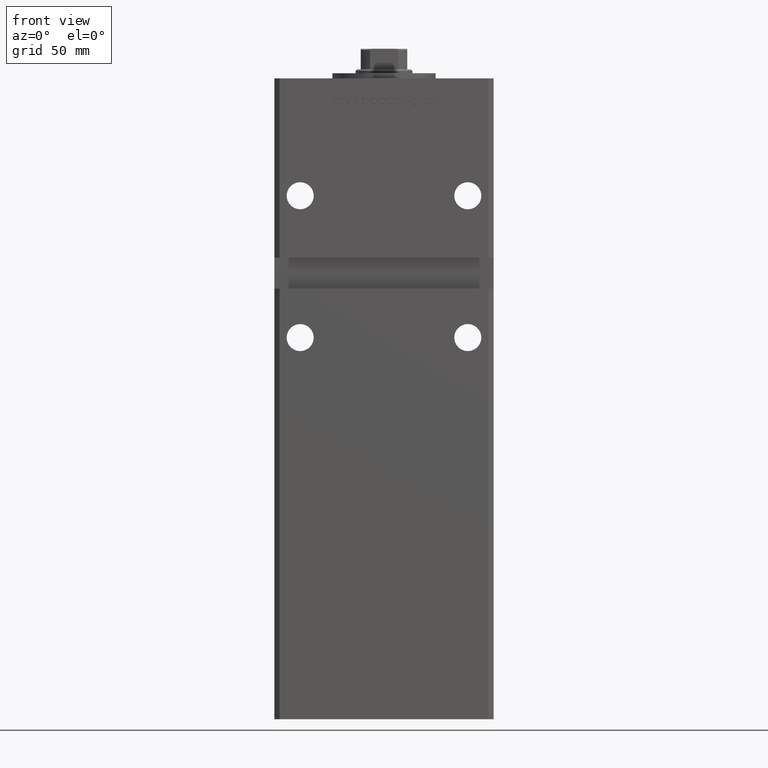
[diagram: clean part render]
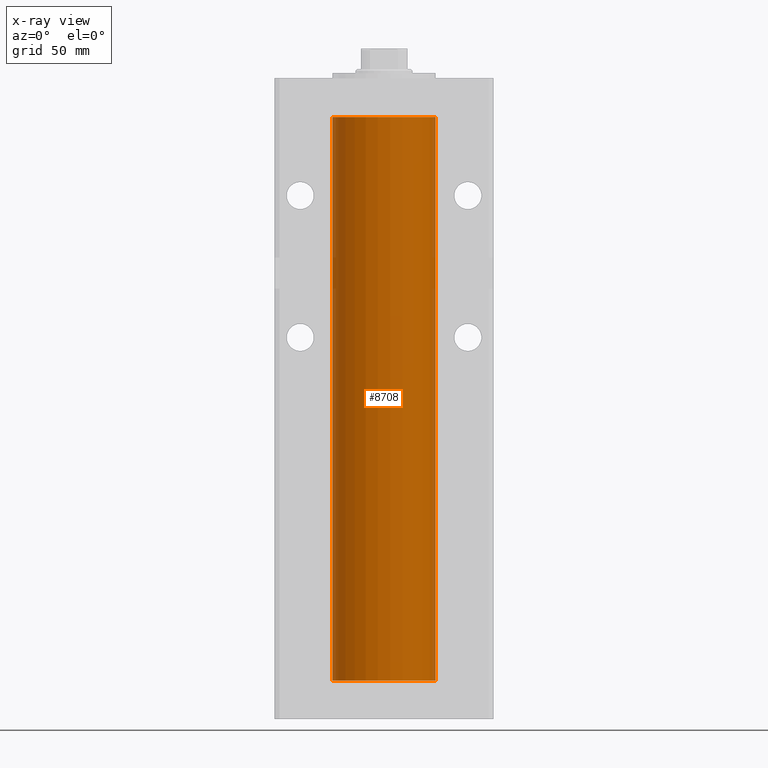
[diagram: x-ray — body ghosted, one internal face saturated and labeled with its STEP entity id]
A machine part, front view, then the same camera in x-ray: the body is ghosted and one INTERNAL B-rep face — a face not visible from any outside direction — is saturated and labeled: STEP entity #8708.
In plain terms, the highlighted cylindrical surface (partial cylindrical patch) has radius 20 mm, axis along (-0, -0, -1).
Its self-contained STEP definition (entity closure, byte-faithful):
#2366 = CARTESIAN_POINT ( 'NONE',  ( -20.00000000000000000, 0.000000000000000000, 0.000000000000000000 ) ) ;
#2779 = FACE_OUTER_BOUND ( 'NONE', #3947, .T. ) ;
#3947 = EDGE_LOOP ( 'NONE', ( #44469, #33093, #25460, #18697 ) ) ;
#4025 = CARTESIAN_POINT ( 'NONE',  ( 0.000000000000000000, 0.000000000000000000, 218.5000000000000000 ) ) ;
#5910 = CARTESIAN_POINT ( 'NONE',  ( 20.00000000000000000, 2.449293598294706513E-15, 0.000000000000000000 ) ) ;
#8332 = EDGE_CURVE ( 'NONE', #43055, #49778, #24199, .T. ) ;
#8708 = ADVANCED_FACE ( 'NONE', ( #2779 ), #22388, .F. ) ;
#8950 = EDGE_CURVE ( 'NONE', #17037, #39617, #45996, .T. ) ;
#9204 = DIRECTION ( 'NONE',  ( -0.000000000000000000, -0.000000000000000000, -1.000000000000000000 ) ) ;
#11063 = CARTESIAN_POINT ( 'NONE',  ( -20.00000000000000000, 0.000000000000000000, 218.5000000000000000 ) ) ;
#14985 = CARTESIAN_POINT ( 'NONE',  ( 20.00000000000000000, 2.449293598294706513E-15, 218.5000000000000000 ) ) ;
#16975 = CARTESIAN_POINT ( 'NONE',  ( 20.00000000000000000, 2.449293598294706513E-15, 218.5000000000000000 ) ) ;
#17037 = VERTEX_POINT ( 'NONE', #14985 ) ;
#17220 = AXIS2_PLACEMENT_3D ( 'NONE', #38772, #27754, #40110 ) ;
#18556 = CARTESIAN_POINT ( 'NONE',  ( -20.00000000000000000, 0.000000000000000000, 218.5000000000000000 ) ) ;
#18697 = ORIENTED_EDGE ( 'NONE', *, *, #8332, .F. ) ;
#21688 = EDGE_CURVE ( 'NONE', #43055, #17037, #33452, .T. ) ;
#22388 = CYLINDRICAL_SURFACE ( 'NONE', #17220, 20.00000000000000000 ) ;
#23926 = DIRECTION ( 'NONE',  ( -0.000000000000000000, -0.000000000000000000, -1.000000000000000000 ) ) ;
#24083 = VECTOR ( 'NONE', #9204, 1000.000000000000000 ) ;
#24199 = LINE ( 'NONE', #11063, #39541 ) ;
#24706 = DIRECTION ( 'NONE',  ( -0.000000000000000000, 0.000000000000000000, 1.000000000000000000 ) ) ;
#25460 = ORIENTED_EDGE ( 'NONE', *, *, #40399, .F. ) ;
#27754 = DIRECTION ( 'NONE',  ( -0.000000000000000000, -0.000000000000000000, -1.000000000000000000 ) ) ;
#33093 = ORIENTED_EDGE ( 'NONE', *, *, #8950, .T. ) ;
#33452 = CIRCLE ( 'NONE', #52299, 20.00000000000000000 ) ;
#38772 = CARTESIAN_POINT ( 'NONE',  ( 0.000000000000000000, 0.000000000000000000, 218.5000000000000000 ) ) ;
#39541 = VECTOR ( 'NONE', #23926, 1000.000000000000000 ) ;
#39617 = VERTEX_POINT ( 'NONE', #5910 ) ;
#40110 = DIRECTION ( 'NONE',  ( -1.000000000000000000, 0.000000000000000000, 0.000000000000000000 ) ) ;
#40345 = CARTESIAN_POINT ( 'NONE',  ( 0.000000000000000000, 0.000000000000000000, 0.000000000000000000 ) ) ;
#40399 = EDGE_CURVE ( 'NONE', #49778, #39617, #40608, .T. ) ;
#40608 = CIRCLE ( 'NONE', #44907, 20.00000000000000000 ) ;
#40881 = DIRECTION ( 'NONE',  ( -0.000000000000000000, 0.000000000000000000, 1.000000000000000000 ) ) ;
#43055 = VERTEX_POINT ( 'NONE', #18556 ) ;
#44469 = ORIENTED_EDGE ( 'NONE', *, *, #21688, .T. ) ;
#44907 = AXIS2_PLACEMENT_3D ( 'NONE', #40345, #40881, #52692 ) ;
#45389 = DIRECTION ( 'NONE',  ( 1.000000000000000000, 0.000000000000000000, 0.000000000000000000 ) ) ;
#45996 = LINE ( 'NONE', #16975, #24083 ) ;
#49778 = VERTEX_POINT ( 'NONE', #2366 ) ;
#52299 = AXIS2_PLACEMENT_3D ( 'NONE', #4025, #24706, #45389 ) ;
#52692 = DIRECTION ( 'NONE',  ( 1.000000000000000000, 0.000000000000000000, 0.000000000000000000 ) ) ;